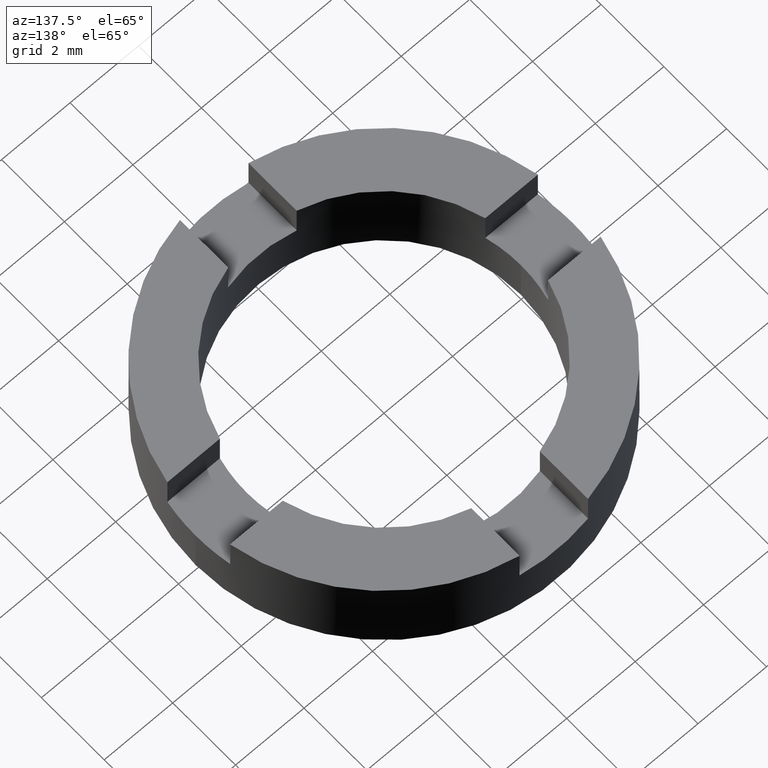
[diagram: clean part render]
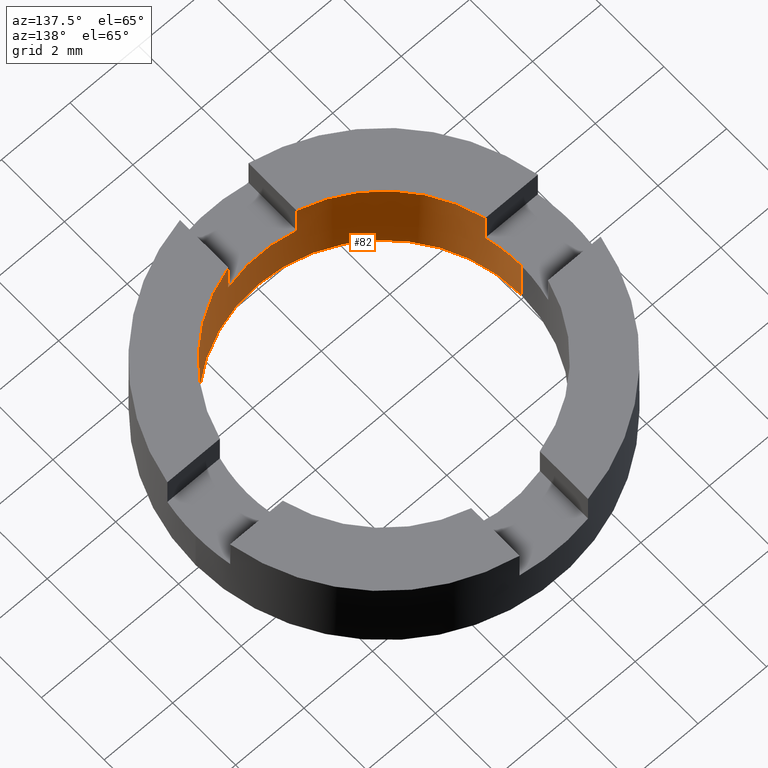
[diagram: same view with one face highlighted and labeled with its STEP entity id]
A machine part, auxiliary view. The second image highlights one B-rep face of the part: STEP entity #82.
In plain terms, the highlighted cylindrical surface (partial cylindrical patch) has radius 4 mm, axis along (-0, -0, -1).
Its self-contained STEP definition (entity closure, byte-faithful):
#3 = CARTESIAN_POINT ( 'NONE',  ( -4.000000000000000000, 0.000000000000000000, 2.500000000000000000 ) ) ;
#9 = VERTEX_POINT ( 'NONE', #399 ) ;
#11 = VERTEX_POINT ( 'NONE', #463 ) ;
#28 = ORIENTED_EDGE ( 'NONE', *, *, #610, .F. ) ;
#40 = LINE ( 'NONE', #587, #323 ) ;
#66 = VECTOR ( 'NONE', #126, 1000.000000000000000 ) ;
#68 = CARTESIAN_POINT ( 'NONE',  ( -0.9999999999999991118, -3.872983346207417465, 2.500000000000000000 ) ) ;
#74 = DIRECTION ( 'NONE',  ( 0.000000000000000000, -0.000000000000000000, -1.000000000000000000 ) ) ;
#77 = CARTESIAN_POINT ( 'NONE',  ( 1.000000000000000888, -3.872983346207416577, 2.500000000000000000 ) ) ;
#82 = ADVANCED_FACE ( 'NONE', ( #574 ), #562, .F. ) ;
#88 = DIRECTION ( 'NONE',  ( 0.000000000000000000, 0.000000000000000000, 1.000000000000000000 ) ) ;
#91 = DIRECTION ( 'NONE',  ( 0.000000000000000000, 0.000000000000000000, 1.000000000000000000 ) ) ;
#97 = CARTESIAN_POINT ( 'NONE',  ( 0.000000000000000000, 0.000000000000000000, 0.000000000000000000 ) ) ;
#104 = DIRECTION ( 'NONE',  ( 1.000000000000000000, 0.000000000000000000, 0.000000000000000000 ) ) ;
#108 = CARTESIAN_POINT ( 'NONE',  ( 0.000000000000000000, 0.000000000000000000, 1.500000000000000000 ) ) ;
#110 = CARTESIAN_POINT ( 'NONE',  ( 1.000000000000000888, -3.872983346207416577, 1.500000000000000000 ) ) ;
#112 = CARTESIAN_POINT ( 'NONE',  ( 0.000000000000000000, 0.000000000000000000, 2.500000000000000000 ) ) ;
#113 = AXIS2_PLACEMENT_3D ( 'NONE', #108, #134, #450 ) ;
#119 = EDGE_CURVE ( 'NONE', #690, #307, #40, .T. ) ;
#120 = EDGE_CURVE ( 'NONE', #183, #769, #576, .T. ) ;
#121 = AXIS2_PLACEMENT_3D ( 'NONE', #310, #74, #388 ) ;
#126 = DIRECTION ( 'NONE',  ( -0.000000000000000000, -0.000000000000000000, 1.000000000000000000 ) ) ;
#127 = VERTEX_POINT ( 'NONE', #201 ) ;
#134 = DIRECTION ( 'NONE',  ( 0.000000000000000000, -0.000000000000000000, -1.000000000000000000 ) ) ;
#135 = CARTESIAN_POINT ( 'NONE',  ( 3.872983346207413469, -1.000000000000011768, 1.500000000000000000 ) ) ;
#144 = ORIENTED_EDGE ( 'NONE', *, *, #671, .F. ) ;
#166 = ORIENTED_EDGE ( 'NONE', *, *, #731, .F. ) ;
#181 = CARTESIAN_POINT ( 'NONE',  ( -0.9999999999999991118, -3.872983346207417465, 1.500000000000000000 ) ) ;
#183 = VERTEX_POINT ( 'NONE', #384 ) ;
#187 = ORIENTED_EDGE ( 'NONE', *, *, #377, .T. ) ;
#191 = DIRECTION ( 'NONE',  ( 1.000000000000000000, 0.000000000000000000, 0.000000000000000000 ) ) ;
#192 = DIRECTION ( 'NONE',  ( -0.000000000000000000, -0.000000000000000000, 1.000000000000000000 ) ) ;
#194 = CIRCLE ( 'NONE', #482, 4.000000000000000000 ) ;
#200 = CARTESIAN_POINT ( 'NONE',  ( 0.000000000000000000, 0.000000000000000000, 2.500000000000000000 ) ) ;
#201 = CARTESIAN_POINT ( 'NONE',  ( -4.000000000000000000, 0.000000000000000000, 1.500000000000000000 ) ) ;
#222 = CARTESIAN_POINT ( 'NONE',  ( 4.000000000000000000, 4.898587196589412829E-16, 0.000000000000000000 ) ) ;
#247 = CIRCLE ( 'NONE', #466, 4.000000000000000000 ) ;
#248 = ORIENTED_EDGE ( 'NONE', *, *, #331, .F. ) ;
#261 = VECTOR ( 'NONE', #658, 1000.000000000000000 ) ;
#264 = CARTESIAN_POINT ( 'NONE',  ( -3.872983346207420574, -0.9999999999999865663, 1.500000000000000000 ) ) ;
#265 = ORIENTED_EDGE ( 'NONE', *, *, #650, .T. ) ;
#289 = DIRECTION ( 'NONE',  ( 0.000000000000000000, 0.000000000000000000, 1.000000000000000000 ) ) ;
#302 = AXIS2_PLACEMENT_3D ( 'NONE', #703, #548, #776 ) ;
#305 = CARTESIAN_POINT ( 'NONE',  ( -4.000000000000000000, 0.000000000000000000, 0.000000000000000000 ) ) ;
#307 = VERTEX_POINT ( 'NONE', #77 ) ;
#310 = CARTESIAN_POINT ( 'NONE',  ( 0.000000000000000000, 0.000000000000000000, 1.500000000000000000 ) ) ;
#323 = VECTOR ( 'NONE', #192, 1000.000000000000000 ) ;
#325 = LINE ( 'NONE', #368, #328 ) ;
#328 = VECTOR ( 'NONE', #496, 1000.000000000000000 ) ;
#331 = EDGE_CURVE ( 'NONE', #407, #476, #578, .T. ) ;
#336 = EDGE_CURVE ( 'NONE', #183, #773, #325, .T. ) ;
#353 = DIRECTION ( 'NONE',  ( 1.000000000000000000, 0.000000000000000000, 0.000000000000000000 ) ) ;
#358 = CARTESIAN_POINT ( 'NONE',  ( -3.872983346207420574, -0.9999999999999865663, 1.500000000000000000 ) ) ;
#368 = CARTESIAN_POINT ( 'NONE',  ( 4.000000000000000000, 4.898587196589412829E-16, 2.500000000000000000 ) ) ;
#377 = EDGE_CURVE ( 'NONE', #684, #11, #523, .T. ) ;
#381 = CARTESIAN_POINT ( 'NONE',  ( -0.9999999999999991118, -3.872983346207417465, 1.500000000000000000 ) ) ;
#384 = CARTESIAN_POINT ( 'NONE',  ( 4.000000000000000000, 4.898587196589412829E-16, 1.500000000000000000 ) ) ;
#388 = DIRECTION ( 'NONE',  ( 1.000000000000000000, 5.329070518200751394E-15, 0.000000000000000000 ) ) ;
#390 = CARTESIAN_POINT ( 'NONE',  ( 0.000000000000000000, 0.000000000000000000, 1.500000000000000000 ) ) ;
#399 = CARTESIAN_POINT ( 'NONE',  ( 3.872983346207413469, -1.000000000000011768, 2.500000000000000000 ) ) ;
#407 = VERTEX_POINT ( 'NONE', #381 ) ;
#410 = ORIENTED_EDGE ( 'NONE', *, *, #627, .F. ) ;
#420 = ORIENTED_EDGE ( 'NONE', *, *, #732, .T. ) ;
#431 = ORIENTED_EDGE ( 'NONE', *, *, #119, .T. ) ;
#438 = VECTOR ( 'NONE', #600, 1000.000000000000000 ) ;
#446 = ORIENTED_EDGE ( 'NONE', *, *, #483, .F. ) ;
#450 = DIRECTION ( 'NONE',  ( 1.000000000000000000, 0.000000000000000000, 0.000000000000000000 ) ) ;
#458 = CIRCLE ( 'NONE', #759, 4.000000000000000000 ) ;
#459 = AXIS2_PLACEMENT_3D ( 'NONE', #97, #91, #353 ) ;
#461 = DIRECTION ( 'NONE',  ( -0.000000000000000000, -0.000000000000000000, -1.000000000000000000 ) ) ;
#463 = CARTESIAN_POINT ( 'NONE',  ( -3.872983346207420574, -0.9999999999999865663, 2.500000000000000000 ) ) ;
#465 = VECTOR ( 'NONE', #461, 1000.000000000000000 ) ;
#466 = AXIS2_PLACEMENT_3D ( 'NONE', #390, #538, #104 ) ;
#476 = VERTEX_POINT ( 'NONE', #68 ) ;
#482 = AXIS2_PLACEMENT_3D ( 'NONE', #200, #88, #191 ) ;
#483 = EDGE_CURVE ( 'NONE', #690, #407, #247, .T. ) ;
#496 = DIRECTION ( 'NONE',  ( -0.000000000000000000, -0.000000000000000000, -1.000000000000000000 ) ) ;
#511 = VERTEX_POINT ( 'NONE', #305 ) ;
#517 = ORIENTED_EDGE ( 'NONE', *, *, #336, .T. ) ;
#523 = LINE ( 'NONE', #264, #261 ) ;
#538 = DIRECTION ( 'NONE',  ( 0.000000000000000000, -0.000000000000000000, -1.000000000000000000 ) ) ;
#548 = DIRECTION ( 'NONE',  ( -0.000000000000000000, -0.000000000000000000, -1.000000000000000000 ) ) ;
#562 = CYLINDRICAL_SURFACE ( 'NONE', #302, 4.000000000000000000 ) ;
#574 = FACE_OUTER_BOUND ( 'NONE', #664, .T. ) ;
#576 = CIRCLE ( 'NONE', #113, 4.000000000000000000 ) ;
#578 = LINE ( 'NONE', #181, #66 ) ;
#587 = CARTESIAN_POINT ( 'NONE',  ( 1.000000000000000888, -3.872983346207416577, 1.500000000000000000 ) ) ;
#600 = DIRECTION ( 'NONE',  ( -0.000000000000000000, -0.000000000000000000, 1.000000000000000000 ) ) ;
#610 = EDGE_CURVE ( 'NONE', #769, #9, #706, .T. ) ;
#627 = EDGE_CURVE ( 'NONE', #511, #773, #717, .T. ) ;
#650 = EDGE_CURVE ( 'NONE', #11, #476, #194, .T. ) ;
#658 = DIRECTION ( 'NONE',  ( -0.000000000000000000, -0.000000000000000000, 1.000000000000000000 ) ) ;
#664 = EDGE_LOOP ( 'NONE', ( #771, #517, #410, #144, #166, #187, #265, #248, #446, #431, #420, #28 ) ) ;
#671 = EDGE_CURVE ( 'NONE', #127, #511, #713, .T. ) ;
#684 = VERTEX_POINT ( 'NONE', #358 ) ;
#690 = VERTEX_POINT ( 'NONE', #110 ) ;
#703 = CARTESIAN_POINT ( 'NONE',  ( 0.000000000000000000, 0.000000000000000000, 2.500000000000000000 ) ) ;
#706 = LINE ( 'NONE', #755, #438 ) ;
#713 = LINE ( 'NONE', #3, #465 ) ;
#715 = CIRCLE ( 'NONE', #121, 4.000000000000000000 ) ;
#717 = CIRCLE ( 'NONE', #459, 4.000000000000000000 ) ;
#731 = EDGE_CURVE ( 'NONE', #684, #127, #715, .T. ) ;
#732 = EDGE_CURVE ( 'NONE', #307, #9, #458, .T. ) ;
#741 = DIRECTION ( 'NONE',  ( 1.000000000000000000, 0.000000000000000000, 0.000000000000000000 ) ) ;
#755 = CARTESIAN_POINT ( 'NONE',  ( 3.872983346207413469, -1.000000000000011768, 1.500000000000000000 ) ) ;
#759 = AXIS2_PLACEMENT_3D ( 'NONE', #112, #289, #741 ) ;
#769 = VERTEX_POINT ( 'NONE', #135 ) ;
#771 = ORIENTED_EDGE ( 'NONE', *, *, #120, .F. ) ;
#773 = VERTEX_POINT ( 'NONE', #222 ) ;
#776 = DIRECTION ( 'NONE',  ( -1.000000000000000000, 0.000000000000000000, 0.000000000000000000 ) ) ;